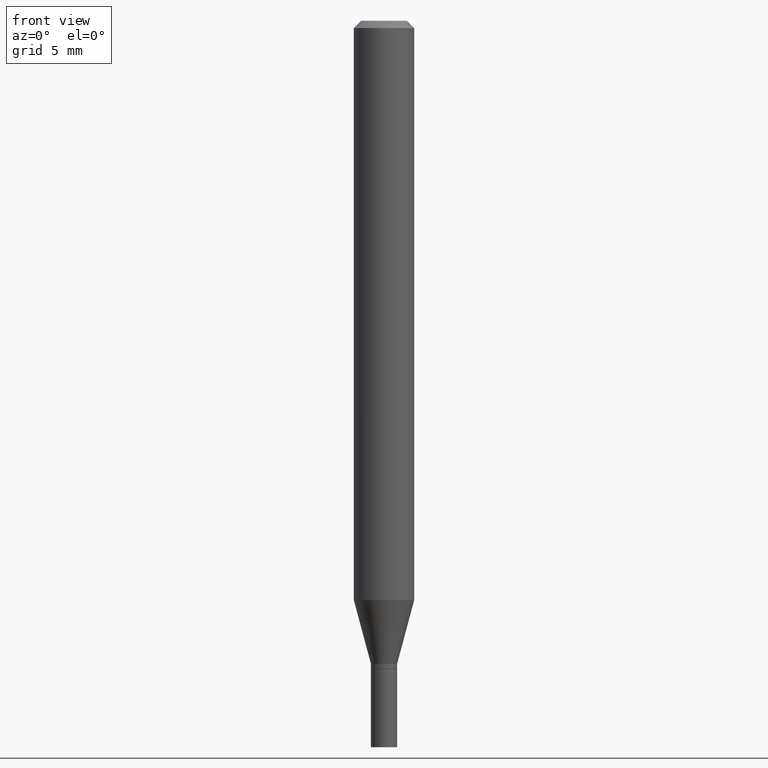
[diagram: clean part render]
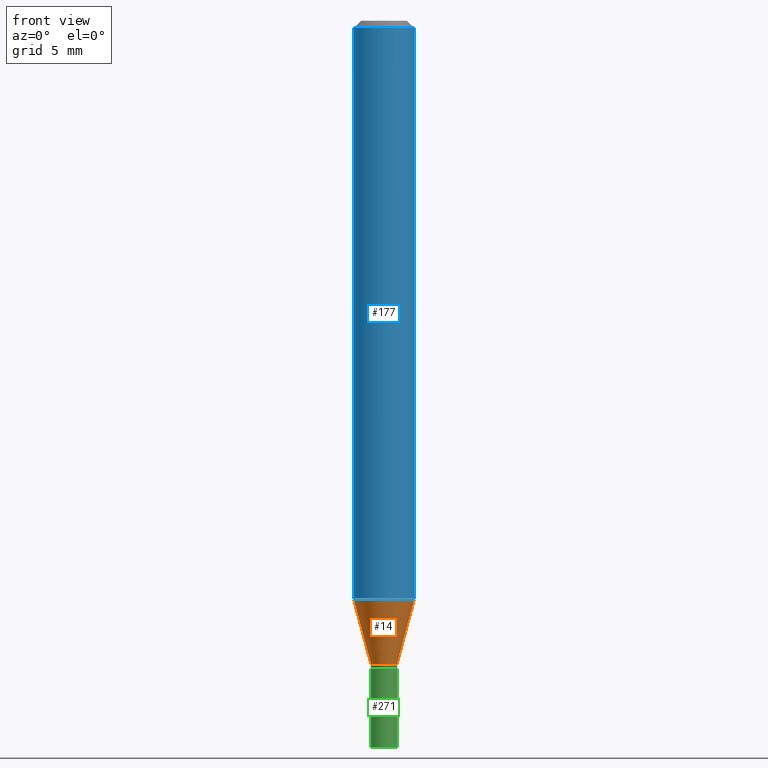
[diagram: same view with three faces highlighted in distinct colors, each labeled with its STEP entity id]
A machine part, front view with three faces highlighted in distinct colors.
Their STEP definitions:

[orange] entity #14 — the highlighted conical surface has half-angle 15 deg.
#14 = ADVANCED_FACE ( 'NONE', ( #187 ), #314, .T. ) ;
#19 = EDGE_CURVE ( 'NONE', #237, #92, #354, .T. ) ;
#22 = CARTESIAN_POINT ( 'NONE',  ( 0.02699999999999992684, -4.825227210281226768E-15, -1.328000000000000069 ) ) ;
#30 = VERTEX_POINT ( 'NONE', #22 ) ;
#42 = CARTESIAN_POINT ( 'NONE',  ( 3.247582574613861342E-29, -4.636687217983698072E-15, -1.328000000000000069 ) ) ;
#55 = ORIENTED_EDGE ( 'NONE', *, *, #59, .T. ) ;
#59 = EDGE_CURVE ( 'NONE', #237, #30, #330, .T. ) ;
#60 = EDGE_LOOP ( 'NONE', ( #141, #55, #350, #329 ) ) ;
#77 = AXIS2_PLACEMENT_3D ( 'NONE', #324, #423, #109 ) ;
#84 = AXIS2_PLACEMENT_3D ( 'NONE', #42, #122, #366 ) ;
#92 = VERTEX_POINT ( 'NONE', #163 ) ;
#109 = DIRECTION ( 'NONE',  ( 1.000000000000000000, -6.982962677686279332E-15, 0.000000000000000000 ) ) ;
#122 = DIRECTION ( 'NONE',  ( -2.445468806185136597E-29, 3.491481338843145583E-15, 1.000000000000000000 ) ) ;
#123 = VECTOR ( 'NONE', #445, 39.37007874015748854 ) ;
#135 = VERTEX_POINT ( 'NONE', #137 ) ;
#137 = CARTESIAN_POINT ( 'NONE',  ( 0.06250000000000000000, -4.610543691205524908E-15, -1.195512196331304677 ) ) ;
#141 = ORIENTED_EDGE ( 'NONE', *, *, #19, .F. ) ;
#149 = VECTOR ( 'NONE', #302, 39.37007874015748854 ) ;
#158 = AXIS2_PLACEMENT_3D ( 'NONE', #438, #356, #346 ) ;
#163 = CARTESIAN_POINT ( 'NONE',  ( -0.06250000000000000000, -3.730019314000071411E-15, -1.195512196331304677 ) ) ;
#180 = CARTESIAN_POINT ( 'NONE',  ( -0.02699999999999992684, -4.087429996664271131E-15, -1.328000000000000069 ) ) ;
#187 = FACE_OUTER_BOUND ( 'NONE', #60, .T. ) ;
#237 = VERTEX_POINT ( 'NONE', #180 ) ;
#272 = EDGE_CURVE ( 'NONE', #92, #135, #280, .T. ) ;
#280 = CIRCLE ( 'NONE', #158, 0.06250000000000000000 ) ;
#296 = CARTESIAN_POINT ( 'NONE',  ( -0.02699999999999992684, -4.444840679328471640E-15, -1.328000000000000069 ) ) ;
#302 = DIRECTION ( 'NONE',  ( 0.2588190451025207395, 1.565188264969626109E-15, 0.9659258262890682012 ) ) ;
#314 = CONICAL_SURFACE ( 'NONE', #77, 0.02699999999999992684, 0.2617993877991494633 ) ;
#324 = CARTESIAN_POINT ( 'NONE',  ( 3.247582574613861342E-29, -4.636687217983698072E-15, -1.328000000000000069 ) ) ;
#329 = ORIENTED_EDGE ( 'NONE', *, *, #272, .F. ) ;
#330 = CIRCLE ( 'NONE', #84, 0.02699999999999992684 ) ;
#346 = DIRECTION ( 'NONE',  ( 1.000000000000000000, -6.982962677686262766E-15, 0.000000000000000000 ) ) ;
#347 = EDGE_CURVE ( 'NONE', #30, #135, #418, .T. ) ;
#350 = ORIENTED_EDGE ( 'NONE', *, *, #347, .T. ) ;
#354 = LINE ( 'NONE', #296, #123 ) ;
#356 = DIRECTION ( 'NONE',  ( -2.445468806185136597E-29, 3.491481338843145583E-15, 1.000000000000000000 ) ) ;
#366 = DIRECTION ( 'NONE',  ( 1.000000000000000000, -6.982962677686279332E-15, 0.000000000000000000 ) ) ;
#418 = LINE ( 'NONE', #455, #149 ) ;
#423 = DIRECTION ( 'NONE',  ( -2.445468806185136597E-29, 3.491481338843145583E-15, 1.000000000000000000 ) ) ;
#438 = CARTESIAN_POINT ( 'NONE',  ( 2.923587783542086622E-29, -4.174108523850133238E-15, -1.195512196331304677 ) ) ;
#445 = DIRECTION ( 'NONE',  ( -0.2588190451025207395, 5.211531920934546309E-15, 0.9659258262890682012 ) ) ;
#455 = CARTESIAN_POINT ( 'NONE',  ( 0.02699999999999992684, -4.825227210281226768E-15, -1.328000000000000069 ) ) ;

[blue] entity #177 — the highlighted cylindrical surface (edge-blend (fillet) strip) has radius 1.5875 mm, axis along (-0, 0, 1).
#10 = AXIS2_PLACEMENT_3D ( 'NONE', #268, #262, #82 ) ;
#25 = VERTEX_POINT ( 'NONE', #405 ) ;
#47 = EDGE_CURVE ( 'NONE', #92, #25, #160, .T. ) ;
#67 = DIRECTION ( 'NONE',  ( -2.445468806185136597E-29, 3.491481338843145583E-15, 1.000000000000000000 ) ) ;
#73 = LINE ( 'NONE', #213, #307 ) ;
#82 = DIRECTION ( 'NONE',  ( 1.000000000000000000, -6.982962677686266711E-15, 4.876176775795935793E-29 ) ) ;
#92 = VERTEX_POINT ( 'NONE', #163 ) ;
#121 = CYLINDRICAL_SURFACE ( 'NONE', #10, 0.06250000000000000000 ) ;
#130 = CARTESIAN_POINT ( 'NONE',  ( -0.06250000000000000000, 4.440892098500626162E-16, -3.074334431409316114E-30 ) ) ;
#134 = DIRECTION ( 'NONE',  ( -2.445468806185136877E-29, 3.491481338843145188E-15, 1.000000000000000000 ) ) ;
#135 = VERTEX_POINT ( 'NONE', #137 ) ;
#137 = CARTESIAN_POINT ( 'NONE',  ( 0.06250000000000000000, -4.610543691205524908E-15, -1.195512196331304677 ) ) ;
#158 = AXIS2_PLACEMENT_3D ( 'NONE', #438, #356, #346 ) ;
#160 = LINE ( 'NONE', #130, #425 ) ;
#163 = CARTESIAN_POINT ( 'NONE',  ( -0.06250000000000000000, -3.730019314000071411E-15, -1.195512196331304677 ) ) ;
#167 = ORIENTED_EDGE ( 'NONE', *, *, #236, .T. ) ;
#171 = ORIENTED_EDGE ( 'NONE', *, *, #272, .T. ) ;
#175 = CARTESIAN_POINT ( 'NONE',  ( 3.668203209277705088E-31, -5.237222008264718399E-17, -0.01499999999999999944 ) ) ;
#177 = ADVANCED_FACE ( 'NONE', ( #294 ), #121, .T. ) ;
#210 = DIRECTION ( 'NONE',  ( 1.000000000000000000, -6.982962677686266711E-15, 0.000000000000000000 ) ) ;
#213 = CARTESIAN_POINT ( 'NONE',  ( 0.06250000000000000000, -4.364351673553916694E-16, 3.047610484872459871E-30 ) ) ;
#236 = EDGE_CURVE ( 'NONE', #135, #242, #73, .T. ) ;
#242 = VERTEX_POINT ( 'NONE', #287 ) ;
#262 = DIRECTION ( 'NONE',  ( -2.445468806185136597E-29, 3.491481338843145583E-15, 1.000000000000000000 ) ) ;
#268 = CARTESIAN_POINT ( 'NONE',  ( 0.000000000000000000, 0.000000000000000000, 0.000000000000000000 ) ) ;
#272 = EDGE_CURVE ( 'NONE', #92, #135, #280, .T. ) ;
#280 = CIRCLE ( 'NONE', #158, 0.06250000000000000000 ) ;
#287 = CARTESIAN_POINT ( 'NONE',  ( 0.06250000000000000000, -4.888073874380388472E-16, -0.01499999999999999944 ) ) ;
#294 = FACE_OUTER_BOUND ( 'NONE', #458, .T. ) ;
#307 = VECTOR ( 'NONE', #323, 39.37007874015748143 ) ;
#323 = DIRECTION ( 'NONE',  ( -2.445468806185136877E-29, 3.491481338843145188E-15, 1.000000000000000000 ) ) ;
#346 = DIRECTION ( 'NONE',  ( 1.000000000000000000, -6.982962677686262766E-15, 0.000000000000000000 ) ) ;
#356 = DIRECTION ( 'NONE',  ( -2.445468806185136597E-29, 3.491481338843145583E-15, 1.000000000000000000 ) ) ;
#358 = AXIS2_PLACEMENT_3D ( 'NONE', #175, #67, #210 ) ;
#384 = EDGE_CURVE ( 'NONE', #25, #242, #416, .T. ) ;
#405 = CARTESIAN_POINT ( 'NONE',  ( -0.06250000000000000000, -1.669151162116327740E-15, -0.01499999999999999944 ) ) ;
#416 = CIRCLE ( 'NONE', #358, 0.06250000000000000000 ) ;
#417 = ORIENTED_EDGE ( 'NONE', *, *, #384, .F. ) ;
#425 = VECTOR ( 'NONE', #134, 39.37007874015748143 ) ;
#438 = CARTESIAN_POINT ( 'NONE',  ( 2.923587783542086622E-29, -4.174108523850133238E-15, -1.195512196331304677 ) ) ;
#446 = ORIENTED_EDGE ( 'NONE', *, *, #47, .F. ) ;
#458 = EDGE_LOOP ( 'NONE', ( #446, #171, #167, #417 ) ) ;

[green] entity #271 — the highlighted cylindrical surface (edge-blend (fillet) strip) has radius 0.6858 mm, axis along (-0, 0, 1).
#2 = CARTESIAN_POINT ( 'NONE',  ( 3.272037262675712888E-29, -4.671602031372128143E-15, -1.338000000000000078 ) ) ;
#17 = LINE ( 'NONE', #53, #154 ) ;
#49 = CARTESIAN_POINT ( 'NONE',  ( -0.02699999999999999969, -4.762565481163196334E-15, -1.338000000000000078 ) ) ;
#52 = VECTOR ( 'NONE', #345, 39.37007874015748143 ) ;
#53 = CARTESIAN_POINT ( 'NONE',  ( 0.02699999999999999969, -1.885399922975291894E-16, 1.316567729464902510E-30 ) ) ;
#54 = EDGE_LOOP ( 'NONE', ( #277, #276, #411, #433 ) ) ;
#63 = VERTEX_POINT ( 'NONE', #49 ) ;
#65 = EDGE_CURVE ( 'NONE', #159, #428, #17, .T. ) ;
#87 = FACE_OUTER_BOUND ( 'NONE', #54, .T. ) ;
#93 = CARTESIAN_POINT ( 'NONE',  ( -0.02699999999999999969, -4.762565481163196334E-15, -1.500000000000000222 ) ) ;
#99 = CARTESIAN_POINT ( 'NONE',  ( 3.668203209277704895E-29, -5.237222008264718177E-15, -1.500000000000000222 ) ) ;
#100 = VERTEX_POINT ( 'NONE', #93 ) ;
#112 = DIRECTION ( 'NONE',  ( -2.445468806185136597E-29, 3.491481338843145583E-15, 1.000000000000000000 ) ) ;
#126 = CARTESIAN_POINT ( 'NONE',  ( 0.000000000000000000, 0.000000000000000000, 0.000000000000000000 ) ) ;
#131 = EDGE_CURVE ( 'NONE', #63, #428, #306, .T. ) ;
#145 = DIRECTION ( 'NONE',  ( 1.000000000000000000, -6.982962677686261189E-15, 0.000000000000000000 ) ) ;
#154 = VECTOR ( 'NONE', #230, 39.37007874015748143 ) ;
#159 = VERTEX_POINT ( 'NONE', #409 ) ;
#194 = CIRCLE ( 'NONE', #261, 0.02699999999999999969 ) ;
#224 = AXIS2_PLACEMENT_3D ( 'NONE', #2, #112, #380 ) ;
#230 = DIRECTION ( 'NONE',  ( -2.445468806185136877E-29, 3.491481338843145188E-15, 1.000000000000000000 ) ) ;
#232 = DIRECTION ( 'NONE',  ( -2.445468806185136597E-29, 3.491481338843145583E-15, 1.000000000000000000 ) ) ;
#244 = DIRECTION ( 'NONE',  ( -2.445468806185136597E-29, 3.491481338843145583E-15, 1.000000000000000000 ) ) ;
#251 = CARTESIAN_POINT ( 'NONE',  ( 0.02699999999999999969, -4.860142023669657629E-15, -1.338000000000000078 ) ) ;
#261 = AXIS2_PLACEMENT_3D ( 'NONE', #99, #244, #145 ) ;
#271 = ADVANCED_FACE ( 'NONE', ( #87 ), #367, .T. ) ;
#276 = ORIENTED_EDGE ( 'NONE', *, *, #327, .T. ) ;
#277 = ORIENTED_EDGE ( 'NONE', *, *, #335, .F. ) ;
#278 = LINE ( 'NONE', #342, #52 ) ;
#306 = CIRCLE ( 'NONE', #224, 0.02699999999999999969 ) ;
#315 = AXIS2_PLACEMENT_3D ( 'NONE', #126, #232, #373 ) ;
#327 = EDGE_CURVE ( 'NONE', #100, #159, #194, .T. ) ;
#335 = EDGE_CURVE ( 'NONE', #100, #63, #278, .T. ) ;
#342 = CARTESIAN_POINT ( 'NONE',  ( -0.02699999999999999969, 1.918465386552270480E-16, -1.328112474368824466E-30 ) ) ;
#345 = DIRECTION ( 'NONE',  ( -2.445468806185136877E-29, 3.491481338843145188E-15, 1.000000000000000000 ) ) ;
#367 = CYLINDRICAL_SURFACE ( 'NONE', #315, 0.02699999999999999969 ) ;
#373 = DIRECTION ( 'NONE',  ( 1.000000000000000000, -6.982962677686266711E-15, 4.876176775795935232E-29 ) ) ;
#380 = DIRECTION ( 'NONE',  ( 1.000000000000000000, -6.982962677686261189E-15, 0.000000000000000000 ) ) ;
#409 = CARTESIAN_POINT ( 'NONE',  ( 0.02699999999999999969, -5.425762000562247662E-15, -1.500000000000000222 ) ) ;
#411 = ORIENTED_EDGE ( 'NONE', *, *, #65, .T. ) ;
#428 = VERTEX_POINT ( 'NONE', #251 ) ;
#433 = ORIENTED_EDGE ( 'NONE', *, *, #131, .F. ) ;